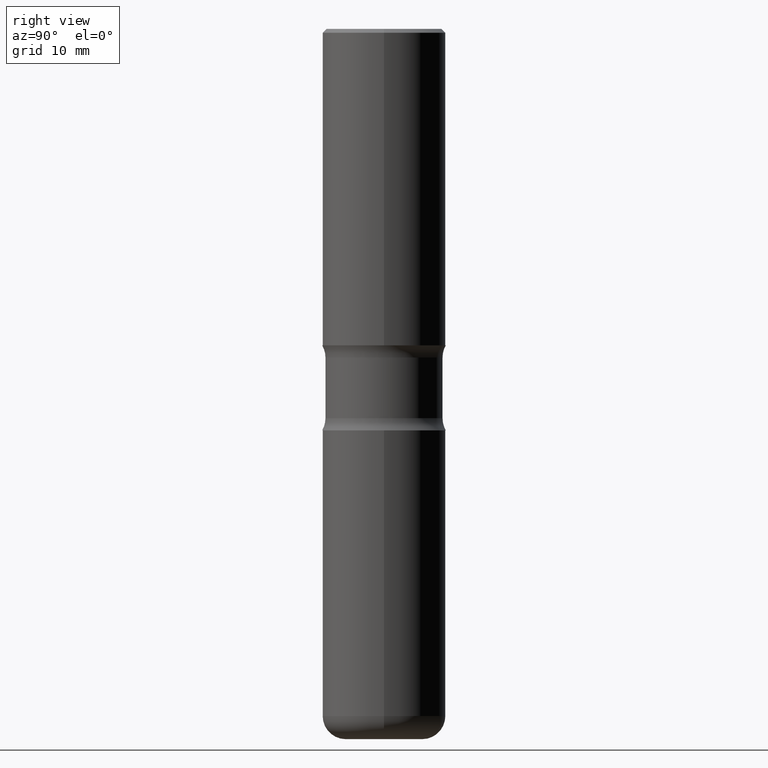
[diagram: clean part render]
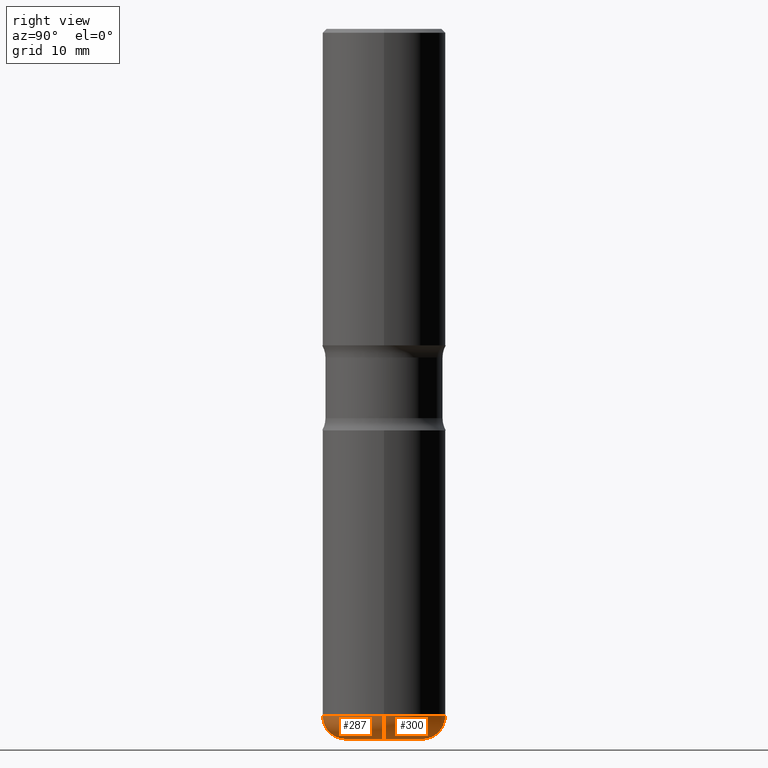
[diagram: same view with one multi-face feature highlighted, each face labeled with its STEP entity id]
A machine part, right view. The highlighted faces form ONE feature: a constant-radius fillet chain: 2 tangent blend faces with common blend radius 2.9972 mm. The faces share edges in the B-rep.
Their STEP definitions:
[1] entity #300 (Torus):
#29 = FACE_OUTER_BOUND ( 'NONE', #560, .T. ) ;
#31 = AXIS2_PLACEMENT_3D ( 'NONE', #368, #537, #153 ) ;
#49 = AXIS2_PLACEMENT_3D ( 'NONE', #147, #481, #106 ) ;
#55 = AXIS2_PLACEMENT_3D ( 'NONE', #319, #376, #364 ) ;
#58 = ORIENTED_EDGE ( 'NONE', *, *, #286, .F. ) ;
#97 = EDGE_CURVE ( 'NONE', #557, #265, #151, .T. ) ;
#103 = VERTEX_POINT ( 'NONE', #452 ) ;
#106 = DIRECTION ( 'NONE',  ( 1.000000000000000000, -6.982962677686268288E-15, 0.000000000000000000 ) ) ;
#127 = CIRCLE ( 'NONE', #49, 0.3149500000000003408 ) ;
#147 = CARTESIAN_POINT ( 'NONE',  ( 8.568922696872717137E-29, -1.223415061130638137E-14, -3.503999999999999559 ) ) ;
#151 = CIRCLE ( 'NONE', #417, 0.1180000000000000770 ) ;
#153 = DIRECTION ( 'NONE',  ( 1.000000000000000000, -6.982962677686266711E-15, 4.883557194083112901E-29 ) ) ;
#161 = CIRCLE ( 'NONE', #328, 0.1969500000000003470 ) ;
#174 = ORIENTED_EDGE ( 'NONE', *, *, #515, .T. ) ;
#177 = DIRECTION ( 'NONE',  ( -2.445468806185136597E-29, 3.491481338843145583E-15, 1.000000000000000000 ) ) ;
#183 = CARTESIAN_POINT ( 'NONE',  ( -0.1969500000000003470, -1.062151387812014781E-14, -3.621999999999999886 ) ) ;
#252 = CIRCLE ( 'NONE', #55, 0.1180000000000000770 ) ;
#261 = TOROIDAL_SURFACE ( 'NONE', #31, 0.1969500000000003470, 0.1180000000000001187 ) ;
#265 = VERTEX_POINT ( 'NONE', #283 ) ;
#283 = CARTESIAN_POINT ( 'NONE',  ( 0.3149500000000003963, -1.443343470664367440E-14, -3.503999999999999559 ) ) ;
#286 = EDGE_CURVE ( 'NONE', #265, #103, #127, .T. ) ;
#300 = ADVANCED_FACE ( 'NONE', ( #29 ), #261, .T. ) ;
#319 = CARTESIAN_POINT ( 'NONE',  ( -0.1969500000000003470, -1.083473669322686277E-14, -3.503999999999999559 ) ) ;
#320 = ORIENTED_EDGE ( 'NONE', *, *, #392, .T. ) ;
#328 = AXIS2_PLACEMENT_3D ( 'NONE', #464, #177, #429 ) ;
#331 = CARTESIAN_POINT ( 'NONE',  ( 0.1969500000000003470, -1.360944511067669474E-14, -3.503999999999999559 ) ) ;
#335 = DIRECTION ( 'NONE',  ( -6.982962677686266711E-15, -1.000000000000000000, 3.491481338843145583E-15 ) ) ;
#364 = DIRECTION ( 'NONE',  ( -1.000000000000000000, 7.105427357601009747E-15, 0.000000000000000000 ) ) ;
#368 = CARTESIAN_POINT ( 'NONE',  ( 8.568922696872717137E-29, -1.223415061130638137E-14, -3.503999999999999559 ) ) ;
#374 = DIRECTION ( 'NONE',  ( 1.000000000000000000, -6.982962677686261977E-15, 0.000000000000000000 ) ) ;
#376 = DIRECTION ( 'NONE',  ( 7.105427357601001859E-15, 1.000000000000000000, -3.491481338843145583E-15 ) ) ;
#387 = CARTESIAN_POINT ( 'NONE',  ( 0.1969500000000003470, -1.402143990866018536E-14, -3.621999999999999886 ) ) ;
#392 = EDGE_CURVE ( 'NONE', #530, #103, #252, .T. ) ;
#417 = AXIS2_PLACEMENT_3D ( 'NONE', #331, #335, #374 ) ;
#429 = DIRECTION ( 'NONE',  ( 1.000000000000000000, -6.982962677686269077E-15, 0.000000000000000000 ) ) ;
#452 = CARTESIAN_POINT ( 'NONE',  ( -0.3149500000000003963, -9.996296265029942230E-15, -3.503999999999999559 ) ) ;
#464 = CARTESIAN_POINT ( 'NONE',  ( 8.857488016002564476E-29, -1.264614540928987199E-14, -3.621999999999999886 ) ) ;
#481 = DIRECTION ( 'NONE',  ( -2.445468806185136597E-29, 3.491481338843145583E-15, 1.000000000000000000 ) ) ;
#489 = ORIENTED_EDGE ( 'NONE', *, *, #97, .F. ) ;
#515 = EDGE_CURVE ( 'NONE', #557, #530, #161, .T. ) ;
#530 = VERTEX_POINT ( 'NONE', #183 ) ;
#537 = DIRECTION ( 'NONE',  ( -2.445468806185136597E-29, 3.491481338843145583E-15, 1.000000000000000000 ) ) ;
#557 = VERTEX_POINT ( 'NONE', #387 ) ;
#560 = EDGE_LOOP ( 'NONE', ( #174, #320, #58, #489 ) ) ;
[2] entity #287 (Torus):
#23 = DIRECTION ( 'NONE',  ( -2.445468806185136597E-29, 3.491481338843145583E-15, 1.000000000000000000 ) ) ;
#42 = AXIS2_PLACEMENT_3D ( 'NONE', #236, #23, #187 ) ;
#55 = AXIS2_PLACEMENT_3D ( 'NONE', #319, #376, #364 ) ;
#60 = DIRECTION ( 'NONE',  ( -2.445468806185136597E-29, 3.491481338843145583E-15, 1.000000000000000000 ) ) ;
#97 = EDGE_CURVE ( 'NONE', #557, #265, #151, .T. ) ;
#103 = VERTEX_POINT ( 'NONE', #452 ) ;
#143 = ORIENTED_EDGE ( 'NONE', *, *, #522, .T. ) ;
#151 = CIRCLE ( 'NONE', #417, 0.1180000000000000770 ) ;
#163 = TOROIDAL_SURFACE ( 'NONE', #463, 0.1969500000000003470, 0.1180000000000001187 ) ;
#183 = CARTESIAN_POINT ( 'NONE',  ( -0.1969500000000003470, -1.062151387812014781E-14, -3.621999999999999886 ) ) ;
#187 = DIRECTION ( 'NONE',  ( 1.000000000000000000, -6.982962677686268288E-15, 0.000000000000000000 ) ) ;
#190 = DIRECTION ( 'NONE',  ( 1.000000000000000000, -6.982962677686266711E-15, 4.883557194083112901E-29 ) ) ;
#213 = CIRCLE ( 'NONE', #42, 0.3149500000000003408 ) ;
#224 = ORIENTED_EDGE ( 'NONE', *, *, #97, .T. ) ;
#228 = CARTESIAN_POINT ( 'NONE',  ( 8.568922696872717137E-29, -1.223415061130638137E-14, -3.503999999999999559 ) ) ;
#230 = EDGE_LOOP ( 'NONE', ( #233, #143, #224, #394 ) ) ;
#233 = ORIENTED_EDGE ( 'NONE', *, *, #392, .F. ) ;
#236 = CARTESIAN_POINT ( 'NONE',  ( 8.568922696872717137E-29, -1.223415061130638137E-14, -3.503999999999999559 ) ) ;
#239 = EDGE_CURVE ( 'NONE', #103, #265, #213, .T. ) ;
#252 = CIRCLE ( 'NONE', #55, 0.1180000000000000770 ) ;
#265 = VERTEX_POINT ( 'NONE', #283 ) ;
#272 = FACE_OUTER_BOUND ( 'NONE', #230, .T. ) ;
#283 = CARTESIAN_POINT ( 'NONE',  ( 0.3149500000000003963, -1.443343470664367440E-14, -3.503999999999999559 ) ) ;
#287 = ADVANCED_FACE ( 'NONE', ( #272 ), #163, .T. ) ;
#294 = CIRCLE ( 'NONE', #495, 0.1969500000000003470 ) ;
#319 = CARTESIAN_POINT ( 'NONE',  ( -0.1969500000000003470, -1.083473669322686277E-14, -3.503999999999999559 ) ) ;
#331 = CARTESIAN_POINT ( 'NONE',  ( 0.1969500000000003470, -1.360944511067669474E-14, -3.503999999999999559 ) ) ;
#335 = DIRECTION ( 'NONE',  ( -6.982962677686266711E-15, -1.000000000000000000, 3.491481338843145583E-15 ) ) ;
#364 = DIRECTION ( 'NONE',  ( -1.000000000000000000, 7.105427357601009747E-15, 0.000000000000000000 ) ) ;
#374 = DIRECTION ( 'NONE',  ( 1.000000000000000000, -6.982962677686261977E-15, 0.000000000000000000 ) ) ;
#376 = DIRECTION ( 'NONE',  ( 7.105427357601001859E-15, 1.000000000000000000, -3.491481338843145583E-15 ) ) ;
#387 = CARTESIAN_POINT ( 'NONE',  ( 0.1969500000000003470, -1.402143990866018536E-14, -3.621999999999999886 ) ) ;
#392 = EDGE_CURVE ( 'NONE', #530, #103, #252, .T. ) ;
#394 = ORIENTED_EDGE ( 'NONE', *, *, #239, .F. ) ;
#417 = AXIS2_PLACEMENT_3D ( 'NONE', #331, #335, #374 ) ;
#442 = DIRECTION ( 'NONE',  ( -2.445468806185136597E-29, 3.491481338843145583E-15, 1.000000000000000000 ) ) ;
#452 = CARTESIAN_POINT ( 'NONE',  ( -0.3149500000000003963, -9.996296265029942230E-15, -3.503999999999999559 ) ) ;
#463 = AXIS2_PLACEMENT_3D ( 'NONE', #228, #442, #190 ) ;
#467 = CARTESIAN_POINT ( 'NONE',  ( 8.857488016002564476E-29, -1.264614540928987199E-14, -3.621999999999999886 ) ) ;
#495 = AXIS2_PLACEMENT_3D ( 'NONE', #467, #60, #559 ) ;
#522 = EDGE_CURVE ( 'NONE', #530, #557, #294, .T. ) ;
#530 = VERTEX_POINT ( 'NONE', #183 ) ;
#557 = VERTEX_POINT ( 'NONE', #387 ) ;
#559 = DIRECTION ( 'NONE',  ( 1.000000000000000000, -6.982962677686269077E-15, 0.000000000000000000 ) ) ;